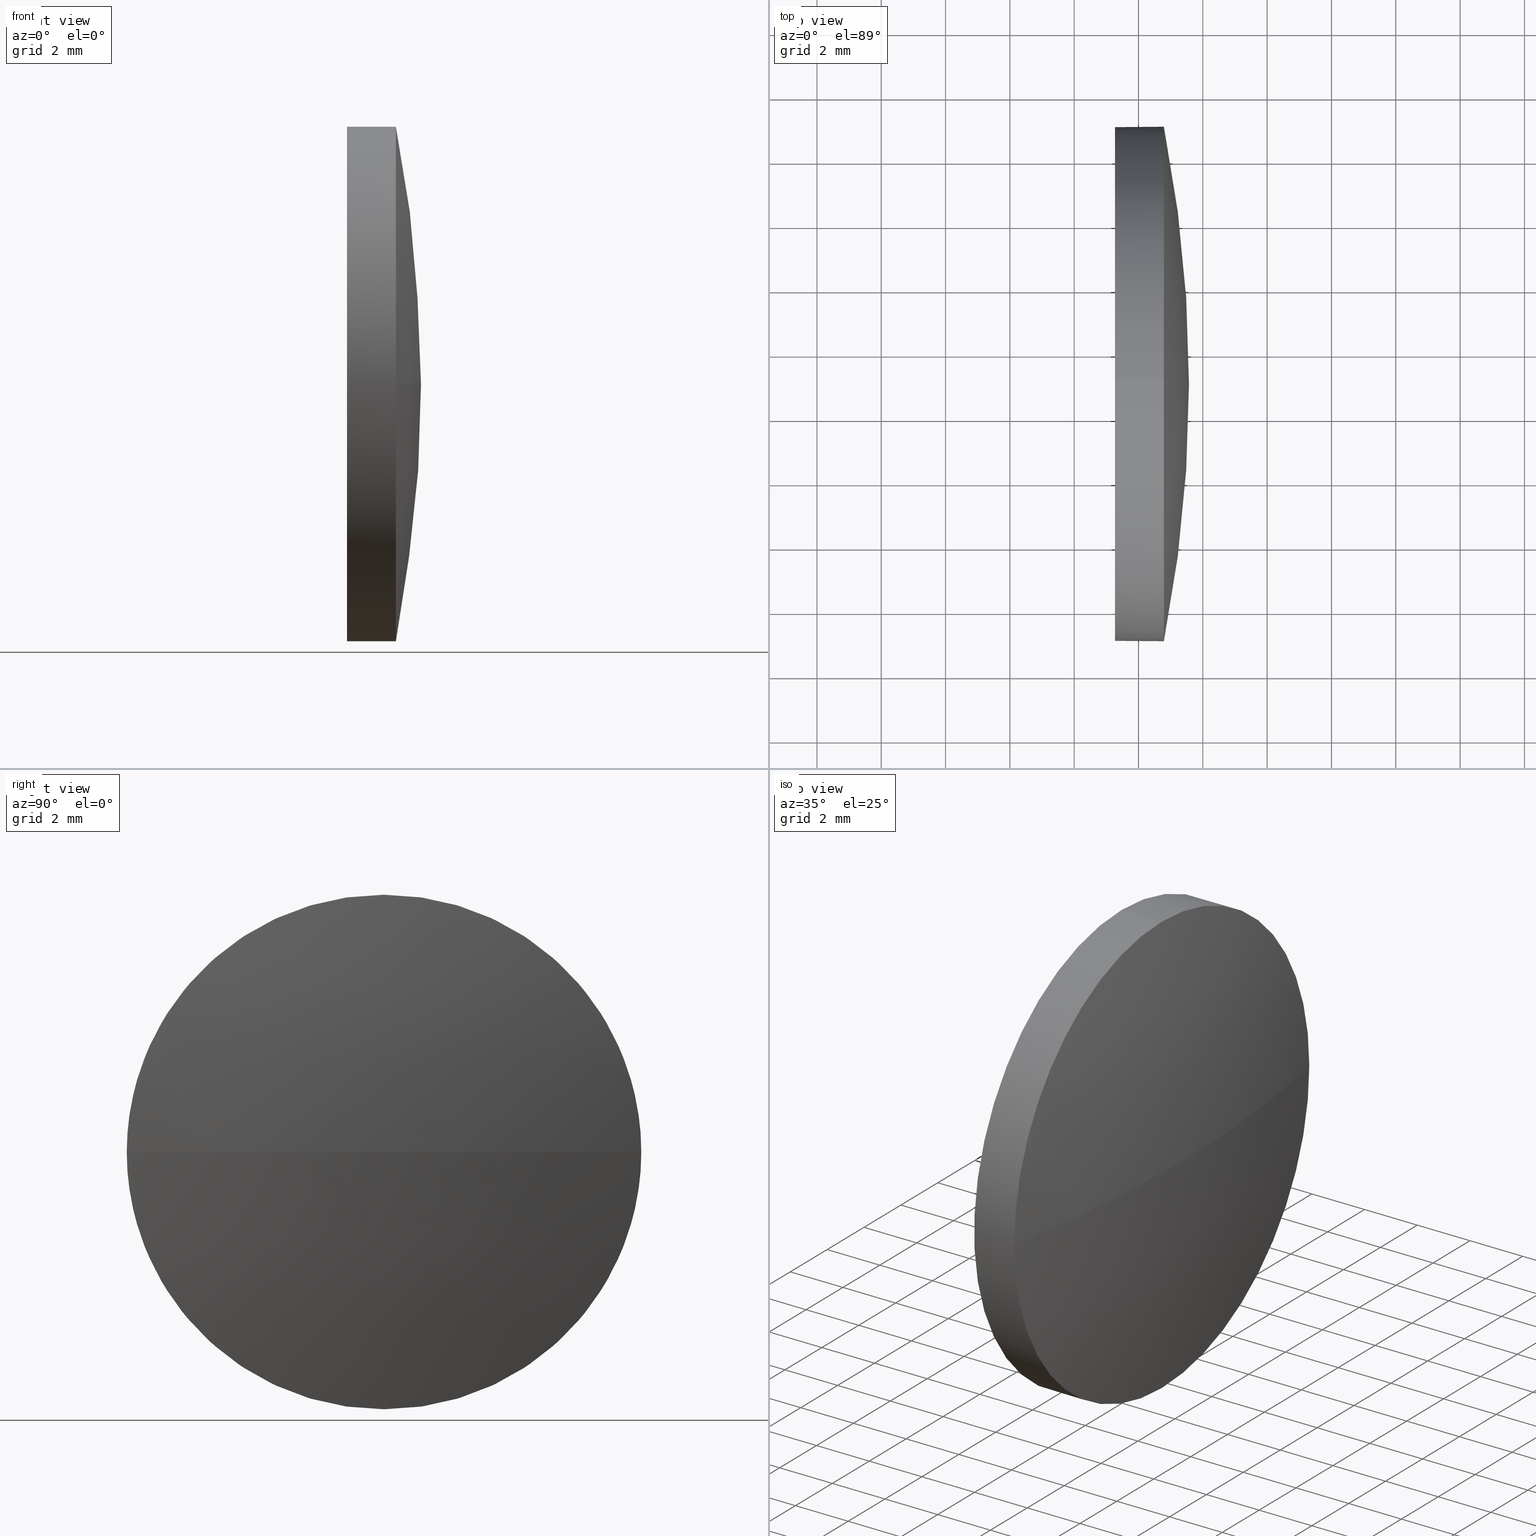
[diagram: canonical four-view strip — front | top / right | iso, engineering-drawing reading convention]
A machine part, canonical four-view strip (front | top / right | iso — engineering-drawing reading convention). The complete STEP part file that produces these views, byte-faithful:
ISO-10303-21;
HEADER;
FILE_DESCRIPTION (( 'STEP AP214' ),
    '1' );
FILE_NAME ('100203.STEP',
    '2019-05-22T07:30:40',
    ( '' ),
    ( '' ),
    'SwSTEP 2.0',
    'SolidWorks 2016',
    '' );
FILE_SCHEMA (( 'AUTOMOTIVE_DESIGN' ));
ENDSEC;

DATA;
#1 = CARTESIAN_POINT ( 'NONE',  ( 799.2693006300039500, 227.0208925470877000, 0.0000000000000000000 ) ) ;
#2 =( NAMED_UNIT ( * ) PLANE_ANGLE_UNIT ( ) SI_UNIT ( $, .RADIAN. ) );
#3 = CARTESIAN_POINT ( 'NONE',  ( 0.0000000000000000000, 0.0000000000000000000, 0.0000000000000000000 ) ) ;
#4 = DIRECTION ( 'NONE',  ( 0.0000000000000000000, -1.000000000000000000, 0.0000000000000000000 ) ) ;
#5 = EDGE_LOOP ( 'NONE', ( #146, #112, #65, #143 ) ) ;
#6 = SHAPE_DEFINITION_REPRESENTATION ( #116, #48 ) ;
#7 = SPHERICAL_SURFACE ( 'NONE', #123, 41.41564102564085200 ) ;
#8 = ADVANCED_FACE ( 'NONE', ( #75 ), #7, .T. ) ;
#9 =( GEOMETRIC_REPRESENTATION_CONTEXT ( 3 ) GLOBAL_UNCERTAINTY_ASSIGNED_CONTEXT ( ( #88 ) ) GLOBAL_UNIT_ASSIGNED_CONTEXT ( ( #162, #179, #91 ) ) REPRESENTATION_CONTEXT ( 'NONE', 'WORKASPACE' ) );
#10 = ADVANCED_FACE ( 'NONE', ( #113 ), #35, .T. ) ;
#11 = SURFACE_STYLE_FILL_AREA ( #47 ) ;
#12 = DIRECTION ( 'NONE',  ( 0.0000000000000000000, 0.0000000000000000000, 1.000000000000000000 ) ) ;
#13 = DIRECTION ( 'NONE',  ( -1.000000000000000000, -0.0000000000000000000, -0.0000000000000000000 ) ) ;
#14 = EDGE_CURVE ( 'NONE', #33, #175, #99, .T. ) ;
#15 = DIRECTION ( 'NONE',  ( -1.000000000000000000, -0.0000000000000000000, -0.0000000000000000000 ) ) ;
#16 = CARTESIAN_POINT ( 'NONE',  ( 800.7893006300039400, 219.0208925470879300, 0.0000000000000000000 ) ) ;
#17 = DIRECTION ( 'NONE',  ( 1.000000000000000000, 0.0000000000000000000, 0.0000000000000000000 ) ) ;
#18 = AXIS2_PLACEMENT_3D ( 'NONE', #46, #28, #148 ) ;
#19 = CARTESIAN_POINT ( 'NONE',  ( 800.7893006300039400, 227.0208925470877000, 7.999999999999979600 ) ) ;
#20 = SPHERICAL_SURFACE ( 'NONE', #25, 41.41564102564085200 ) ;
#21 = ORIENTED_EDGE ( 'NONE', *, *, #66, .F. ) ;
#22 = CYLINDRICAL_SURFACE ( 'NONE', #152, 7.999999999999979600 ) ;
#23 = STYLED_ITEM ( 'NONE', ( #173 ), #26 ) ;
#24 = VERTEX_POINT ( 'NONE', #89 ) ;
#25 = AXIS2_PLACEMENT_3D ( 'NONE', #149, #130, #4 ) ;
#26 = MANIFOLD_SOLID_BREP ( '��ת1', #81 ) ;
#27 = PLANE ( 'NONE',  #70 ) ;
#28 = DIRECTION ( 'NONE',  ( -1.000000000000000000, -0.0000000000000000000, -0.0000000000000000000 ) ) ;
#29 = CARTESIAN_POINT ( 'NONE',  ( 760.1536596043630400, 227.0208925470879500, 0.0000000000000000000 ) ) ;
#30 =( LENGTH_UNIT ( ) NAMED_UNIT ( * ) SI_UNIT ( .MILLI., .METRE. ) );
#31 = DIRECTION ( 'NONE',  ( -1.000000000000000000, 0.0000000000000000000, 0.0000000000000000000 ) ) ;
#32 = MECHANICAL_DESIGN_GEOMETRIC_PRESENTATION_REPRESENTATION (  '', ( #23 ), #40 ) ;
#33 = VERTEX_POINT ( 'NONE', #16 ) ;
#34 = PRODUCT_DEFINITION_CONTEXT ( 'detailed design', #131, 'design' ) ;
#35 = CYLINDRICAL_SURFACE ( 'NONE', #94, 7.999999999999979600 ) ;
#36 = ADVANCED_FACE ( 'NONE', ( #142 ), #22, .T. ) ;
#37 = EDGE_CURVE ( 'NONE', #38, #137, #95, .T. ) ;
#38 = VERTEX_POINT ( 'NONE', #69 ) ;
#39 =( GEOMETRIC_REPRESENTATION_CONTEXT ( 3 ) GLOBAL_UNCERTAINTY_ASSIGNED_CONTEXT ( ( #167 ) ) GLOBAL_UNIT_ASSIGNED_CONTEXT ( ( #30, #177, #58 ) ) REPRESENTATION_CONTEXT ( 'NONE', 'WORKASPACE' ) );
#40 =( GEOMETRIC_REPRESENTATION_CONTEXT ( 3 ) GLOBAL_UNCERTAINTY_ASSIGNED_CONTEXT ( ( #109 ) ) GLOBAL_UNIT_ASSIGNED_CONTEXT ( ( #170, #2, #125 ) ) REPRESENTATION_CONTEXT ( 'NONE', 'WORKASPACE' ) );
#41 = ORIENTED_EDGE ( 'NONE', *, *, #14, .T. ) ;
#42 = DIRECTION ( 'NONE',  ( 0.0000000000000000000, -1.224646799147353200E-016, 1.000000000000000000 ) ) ;
#43 = FILL_AREA_STYLE_COLOUR ( '', #62 ) ;
#44 = DIRECTION ( 'NONE',  ( 0.0000000000000000000, 0.0000000000000000000, 1.000000000000000000 ) ) ;
#45 = AXIS2_PLACEMENT_3D ( 'NONE', #79, #160, #107 ) ;
#46 = CARTESIAN_POINT ( 'NONE',  ( 800.7893006300039400, 227.0208925470877000, 0.0000000000000000000 ) ) ;
#47 = FILL_AREA_STYLE ('',( #43 ) ) ;
#48 = ADVANCED_BREP_SHAPE_REPRESENTATION ( '100203', ( #26, #135 ), #9 ) ;
#49 = CIRCLE ( 'NONE', #45, 7.999999999999979600 ) ;
#50 = AXIS2_PLACEMENT_3D ( 'NONE', #1, #13, #12 ) ;
#51 = DIRECTION ( 'NONE',  ( 0.0000000000000000000, 0.0000000000000000000, 1.000000000000000000 ) ) ;
#52 = DIRECTION ( 'NONE',  ( 0.0000000000000000000, -1.000000000000000000, 0.0000000000000000000 ) ) ;
#53 = DIRECTION ( 'NONE',  ( -1.000000000000000000, -0.0000000000000000000, -0.0000000000000000000 ) ) ;
#54 = CARTESIAN_POINT ( 'NONE',  ( 799.2693006300039500, 227.0208925470877000, 7.999999999999979600 ) ) ;
#55 = ORIENTED_EDGE ( 'NONE', *, *, #169, .T. ) ;
#56 = DIRECTION ( 'NONE',  ( -1.000000000000000000, -0.0000000000000000000, -0.0000000000000000000 ) ) ;
#57 = MECHANICAL_DESIGN_GEOMETRIC_PRESENTATION_REPRESENTATION (  '', ( #97 ), #39 ) ;
#58 =( NAMED_UNIT ( * ) SI_UNIT ( $, .STERADIAN. ) SOLID_ANGLE_UNIT ( ) );
#59 = LINE ( 'NONE', #159, #93 ) ;
#60 = AXIS2_PLACEMENT_3D ( 'NONE', #29, #92, #31 ) ;
#61 = APPLICATION_PROTOCOL_DEFINITION ( 'draft international standard', 'automotive_design', 1998, #76 ) ;
#62 = COLOUR_RGB ( '',1.000000000000000000, 1.000000000000000000, 1.000000000000000000 ) ;
#63 = COLOUR_RGB ( '',1.000000000000000000, 1.000000000000000000, 1.000000000000000000 ) ;
#64 = CIRCLE ( 'NONE', #50, 7.999999999999979600 ) ;
#65 = ORIENTED_EDGE ( 'NONE', *, *, #169, .F. ) ;
#66 = EDGE_CURVE ( 'NONE', #157, #24, #59, .T. ) ;
#67 = VERTEX_POINT ( 'NONE', #54 ) ;
#68 = PRESENTATION_STYLE_ASSIGNMENT (( #106 ) ) ;
#69 = CARTESIAN_POINT ( 'NONE',  ( 801.5693006300040200, 227.0208925470879500, 0.0000000000000000000 ) ) ;
#70 = AXIS2_PLACEMENT_3D ( 'NONE', #144, #180, #161 ) ;
#71 = ORIENTED_EDGE ( 'NONE', *, *, #66, .T. ) ;
#72 = PRODUCT_RELATED_PRODUCT_CATEGORY ( 'part', '', ( #122 ) ) ;
#73 = DIRECTION ( 'NONE',  ( 0.0000000000000000000, -1.000000000000000000, -1.224646799147353200E-016 ) ) ;
#74 = CARTESIAN_POINT ( 'NONE',  ( 760.1536596043630400, 227.0208925470879500, 0.0000000000000000000 ) ) ;
#75 = FACE_OUTER_BOUND ( 'NONE', #5, .T. ) ;
#76 = APPLICATION_CONTEXT ( 'automotive_design' ) ;
#77 = APPLICATION_PROTOCOL_DEFINITION ( 'draft international standard', 'automotive_design', 1998, #131 ) ;
#78 = EDGE_CURVE ( 'NONE', #24, #67, #64, .T. ) ;
#79 = CARTESIAN_POINT ( 'NONE',  ( 800.7893006300039400, 227.0208925470877000, 0.0000000000000000000 ) ) ;
#80 = CARTESIAN_POINT ( 'NONE',  ( 800.7893006300039400, 227.0208925470877000, -7.999999999999979600 ) ) ;
#81 = CLOSED_SHELL ( 'NONE', ( #10, #8, #166, #36, #110 ) ) ;
#82 = PRESENTATION_LAYER_ASSIGNMENT (  '', '', ( #97 ) ) ;
#83 = EDGE_LOOP ( 'NONE', ( #168, #71, #129, #102, #55 ) ) ;
#84 = ORIENTED_EDGE ( 'NONE', *, *, #133, .T. ) ;
#85 = EDGE_CURVE ( 'NONE', #38, #33, #136, .T. ) ;
#86 = DIRECTION ( 'NONE',  ( 0.0000000000000000000, 0.0000000000000000000, 1.000000000000000000 ) ) ;
#87 = EDGE_LOOP ( 'NONE', ( #21, #84, #41, #151, #153 ) ) ;
#88 = UNCERTAINTY_MEASURE_WITH_UNIT (LENGTH_MEASURE( 1.000000000000000100E-005 ), #162, 'distance_accuracy_value', 'NONE');
#89 = CARTESIAN_POINT ( 'NONE',  ( 799.2693006300039500, 227.0208925470877000, -7.999999999999979600 ) ) ;
#90 = DIRECTION ( 'NONE',  ( 0.0000000000000000000, 0.0000000000000000000, 1.000000000000000000 ) ) ;
#91 =( NAMED_UNIT ( * ) SI_UNIT ( $, .STERADIAN. ) SOLID_ANGLE_UNIT ( ) );
#92 = DIRECTION ( 'NONE',  ( 0.0000000000000000000, 0.0000000000000000000, -1.000000000000000000 ) ) ;
#93 = VECTOR ( 'NONE', #15, 1000.000000000000000 ) ;
#94 = AXIS2_PLACEMENT_3D ( 'NONE', #98, #128, #51 ) ;
#95 = CIRCLE ( 'NONE', #163, 41.41564102564085200 ) ;
#96 = ORIENTED_EDGE ( 'NONE', *, *, #37, .F. ) ;
#97 = STYLED_ITEM ( 'NONE', ( #68 ), #48 ) ;
#98 = CARTESIAN_POINT ( 'NONE',  ( 797.6213281570125000, 227.0208925470877000, 0.0000000000000000000 ) ) ;
#99 = CIRCLE ( 'NONE', #171, 7.999999999999979600 ) ;
#100 = CARTESIAN_POINT ( 'NONE',  ( 797.6213281570125000, 227.0208925470877000, 0.0000000000000000000 ) ) ;
#101 = PRODUCT_DEFINITION_FORMATION_WITH_SPECIFIED_SOURCE ( '�κ�', '', #122, .NOT_KNOWN. ) ;
#102 = ORIENTED_EDGE ( 'NONE', *, *, #165, .F. ) ;
#103 = CARTESIAN_POINT ( 'NONE',  ( 797.6213281570125000, 227.0208925470877000, 7.999999999999979600 ) ) ;
#104 = DIRECTION ( 'NONE',  ( 0.0000000000000000000, 0.0000000000000000000, 1.000000000000000000 ) ) ;
#105 = AXIS2_PLACEMENT_3D ( 'NONE', #119, #147, #90 ) ;
#106 = SURFACE_STYLE_USAGE ( .BOTH. , #118 ) ;
#107 = DIRECTION ( 'NONE',  ( 0.0000000000000000000, 0.0000000000000000000, 1.000000000000000000 ) ) ;
#108 = CIRCLE ( 'NONE', #155, 7.999999999999979600 ) ;
#109 = UNCERTAINTY_MEASURE_WITH_UNIT (LENGTH_MEASURE( 1.000000000000000100E-005 ), #170, 'distance_accuracy_value', 'NONE');
#110 = ADVANCED_FACE ( 'NONE', ( #184 ), #27, .F. ) ;
#111 = CIRCLE ( 'NONE', #105, 7.999999999999979600 ) ;
#112 = ORIENTED_EDGE ( 'NONE', *, *, #37, .T. ) ;
#113 = FACE_OUTER_BOUND ( 'NONE', #83, .T. ) ;
#114 = SURFACE_SIDE_STYLE ('',( #154 ) ) ;
#115 = ORIENTED_EDGE ( 'NONE', *, *, #133, .F. ) ;
#116 = PRODUCT_DEFINITION_SHAPE ( 'NONE', 'NONE',  #121 ) ;
#117 = PRODUCT_CONTEXT ( 'NONE', #76, 'mechanical' ) ;
#118 = SURFACE_SIDE_STYLE ('',( #11 ) ) ;
#119 = CARTESIAN_POINT ( 'NONE',  ( 800.7893006300039400, 227.0208925470877000, 0.0000000000000000000 ) ) ;
#120 = ORIENTED_EDGE ( 'NONE', *, *, #85, .T. ) ;
#121 = PRODUCT_DEFINITION ( 'δ֪', '', #101, #34 ) ;
#122 = PRODUCT ( '100203', '100203', '', ( #117 ) ) ;
#123 = AXIS2_PLACEMENT_3D ( 'NONE', #74, #156, #52 ) ;
#124 = ORIENTED_EDGE ( 'NONE', *, *, #178, .F. ) ;
#125 =( NAMED_UNIT ( * ) SI_UNIT ( $, .STERADIAN. ) SOLID_ANGLE_UNIT ( ) );
#126 = FACE_OUTER_BOUND ( 'NONE', #183, .T. ) ;
#127 = CARTESIAN_POINT ( 'NONE',  ( 760.1536596043630400, 227.0208925470879500, 0.0000000000000000000 ) ) ;
#128 = DIRECTION ( 'NONE',  ( -1.000000000000000000, -0.0000000000000000000, -0.0000000000000000000 ) ) ;
#129 = ORIENTED_EDGE ( 'NONE', *, *, #132, .F. ) ;
#130 = DIRECTION ( 'NONE',  ( 0.0000000000000000000, 0.0000000000000000000, 1.000000000000000000 ) ) ;
#131 = APPLICATION_CONTEXT ( 'automotive_design' ) ;
#132 = EDGE_CURVE ( 'NONE', #67, #24, #108, .T. ) ;
#133 = EDGE_CURVE ( 'NONE', #157, #33, #182, .T. ) ;
#134 = CARTESIAN_POINT ( 'NONE',  ( 800.7893006300039400, 235.0208925470877500, 9.797174393178569300E-016 ) ) ;
#135 = AXIS2_PLACEMENT_3D ( 'NONE', #3, #104, #17 ) ;
#136 = CIRCLE ( 'NONE', #60, 41.41564102564088000 ) ;
#137 = VERTEX_POINT ( 'NONE', #134 ) ;
#138 = LINE ( 'NONE', #103, #186 ) ;
#139 = ORIENTED_EDGE ( 'NONE', *, *, #78, .T. ) ;
#140 = FILL_AREA_STYLE ('',( #185 ) ) ;
#141 = PRESENTATION_LAYER_ASSIGNMENT (  '', '', ( #23 ) ) ;
#142 = FACE_OUTER_BOUND ( 'NONE', #87, .T. ) ;
#143 = ORIENTED_EDGE ( 'NONE', *, *, #14, .F. ) ;
#144 = CARTESIAN_POINT ( 'NONE',  ( 799.2693006300039500, 227.0208925470877000, 0.0000000000000000000 ) ) ;
#145 = DIRECTION ( 'NONE',  ( -1.000000000000000000, -0.0000000000000000000, -0.0000000000000000000 ) ) ;
#146 = ORIENTED_EDGE ( 'NONE', *, *, #85, .F. ) ;
#147 = DIRECTION ( 'NONE',  ( -1.000000000000000000, -0.0000000000000000000, -0.0000000000000000000 ) ) ;
#148 = DIRECTION ( 'NONE',  ( 0.0000000000000000000, 0.0000000000000000000, 1.000000000000000000 ) ) ;
#149 = CARTESIAN_POINT ( 'NONE',  ( 760.1536596043630400, 227.0208925470879500, 0.0000000000000000000 ) ) ;
#150 = ORIENTED_EDGE ( 'NONE', *, *, #132, .T. ) ;
#151 = ORIENTED_EDGE ( 'NONE', *, *, #165, .T. ) ;
#152 = AXIS2_PLACEMENT_3D ( 'NONE', #100, #145, #86 ) ;
#153 = ORIENTED_EDGE ( 'NONE', *, *, #78, .F. ) ;
#154 = SURFACE_STYLE_FILL_AREA ( #140 ) ;
#155 = AXIS2_PLACEMENT_3D ( 'NONE', #164, #56, #44 ) ;
#156 = DIRECTION ( 'NONE',  ( 0.0000000000000000000, 0.0000000000000000000, 1.000000000000000000 ) ) ;
#157 = VERTEX_POINT ( 'NONE', #80 ) ;
#158 = EDGE_LOOP ( 'NONE', ( #150, #139 ) ) ;
#159 = CARTESIAN_POINT ( 'NONE',  ( 797.6213281570125000, 227.0208925470877000, -7.999999999999979600 ) ) ;
#160 = DIRECTION ( 'NONE',  ( -1.000000000000000000, -0.0000000000000000000, -0.0000000000000000000 ) ) ;
#161 = DIRECTION ( 'NONE',  ( 0.0000000000000000000, 0.0000000000000000000, -1.000000000000000000 ) ) ;
#162 =( LENGTH_UNIT ( ) NAMED_UNIT ( * ) SI_UNIT ( .MILLI., .METRE. ) );
#163 = AXIS2_PLACEMENT_3D ( 'NONE', #127, #42, #73 ) ;
#164 = CARTESIAN_POINT ( 'NONE',  ( 799.2693006300039500, 227.0208925470877000, 0.0000000000000000000 ) ) ;
#165 = EDGE_CURVE ( 'NONE', #175, #67, #138, .T. ) ;
#166 = ADVANCED_FACE ( 'NONE', ( #126 ), #20, .T. ) ;
#167 = UNCERTAINTY_MEASURE_WITH_UNIT (LENGTH_MEASURE( 1.000000000000000100E-005 ), #30, 'distance_accuracy_value', 'NONE');
#168 = ORIENTED_EDGE ( 'NONE', *, *, #178, .T. ) ;
#169 = EDGE_CURVE ( 'NONE', #175, #137, #111, .T. ) ;
#170 =( LENGTH_UNIT ( ) NAMED_UNIT ( * ) SI_UNIT ( .MILLI., .METRE. ) );
#171 = AXIS2_PLACEMENT_3D ( 'NONE', #172, #53, #176 ) ;
#172 = CARTESIAN_POINT ( 'NONE',  ( 800.7893006300039400, 227.0208925470877000, 0.0000000000000000000 ) ) ;
#173 = PRESENTATION_STYLE_ASSIGNMENT (( #174 ) ) ;
#174 = SURFACE_STYLE_USAGE ( .BOTH. , #114 ) ;
#175 = VERTEX_POINT ( 'NONE', #19 ) ;
#176 = DIRECTION ( 'NONE',  ( 0.0000000000000000000, 0.0000000000000000000, 1.000000000000000000 ) ) ;
#177 =( NAMED_UNIT ( * ) PLANE_ANGLE_UNIT ( ) SI_UNIT ( $, .RADIAN. ) );
#178 = EDGE_CURVE ( 'NONE', #137, #157, #49, .T. ) ;
#179 =( NAMED_UNIT ( * ) PLANE_ANGLE_UNIT ( ) SI_UNIT ( $, .RADIAN. ) );
#180 = DIRECTION ( 'NONE',  ( 1.000000000000000000, 0.0000000000000000000, 0.0000000000000000000 ) ) ;
#181 = DIRECTION ( 'NONE',  ( -1.000000000000000000, -0.0000000000000000000, -0.0000000000000000000 ) ) ;
#182 = CIRCLE ( 'NONE', #18, 7.999999999999979600 ) ;
#183 = EDGE_LOOP ( 'NONE', ( #96, #120, #115, #124 ) ) ;
#184 = FACE_OUTER_BOUND ( 'NONE', #158, .T. ) ;
#185 = FILL_AREA_STYLE_COLOUR ( '', #63 ) ;
#186 = VECTOR ( 'NONE', #181, 1000.000000000000000 ) ;
ENDSEC;
END-ISO-10303-21;
